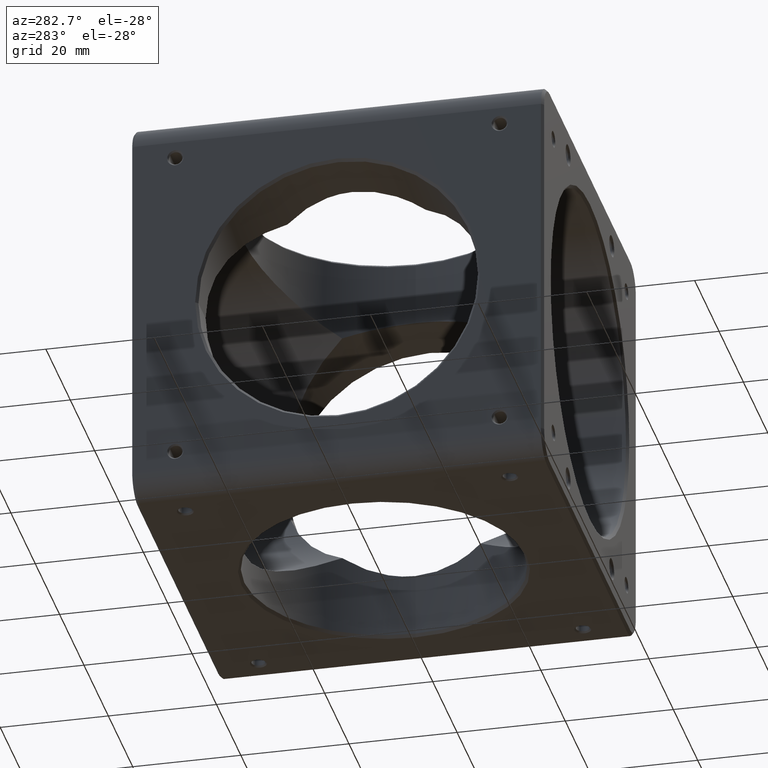
[diagram: clean part render]
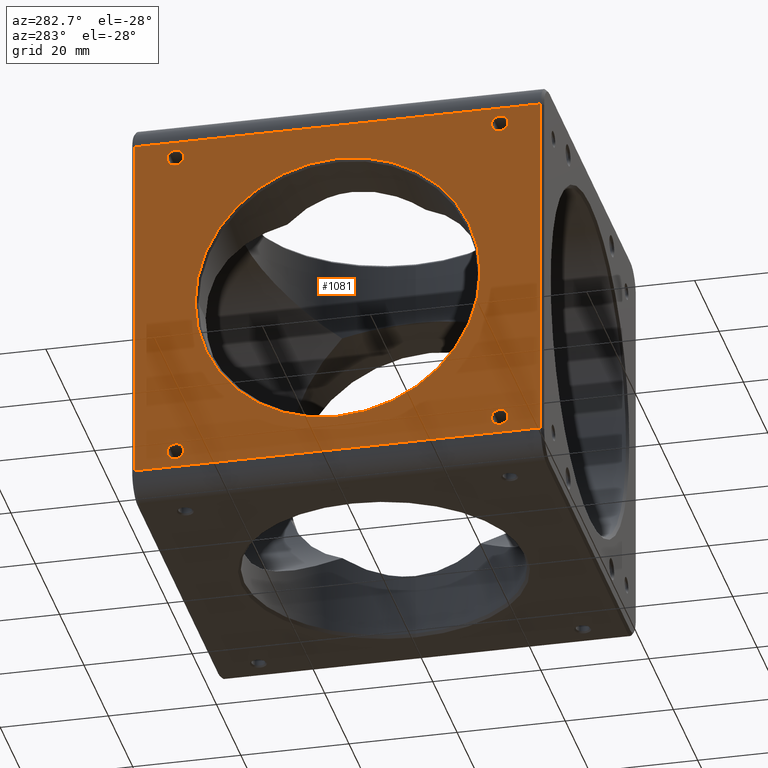
[diagram: same view with one face highlighted and labeled with its STEP entity id]
A machine part, auxiliary view. The second image highlights one B-rep face of the part: STEP entity #1081.
In plain terms, the highlighted planar face has unit normal (1, 0, -0).
Its self-contained STEP definition (entity closure, byte-faithful):
#5 = PLANE ( 'NONE',  #399 ) ;
#163 = ORIENTED_EDGE ( 'NONE', *, *, #4471, .T. ) ;
#286 = CARTESIAN_POINT ( 'NONE',  ( -38.09999999999999432, -30.00000000000000355, 31.52499999999999858 ) ) ;
#295 = ORIENTED_EDGE ( 'NONE', *, *, #4304, .F. ) ;
#296 = AXIS2_PLACEMENT_3D ( 'NONE', #326, #340, #6053 ) ;
#308 = ORIENTED_EDGE ( 'NONE', *, *, #447, .T. ) ;
#326 = CARTESIAN_POINT ( 'NONE',  ( -38.09999999999999432, -30.00000000000000355, 29.99999999999999645 ) ) ;
#340 = DIRECTION ( 'NONE',  ( -1.000000000000000000, -0.0000000000000000000, -0.0000000000000000000 ) ) ;
#399 = AXIS2_PLACEMENT_3D ( 'NONE', #886, #6068, #5681 ) ;
#414 = VERTEX_POINT ( 'NONE', #4195 ) ;
#447 = EDGE_CURVE ( 'NONE', #4114, #1068, #970, .T. ) ;
#509 = DIRECTION ( 'NONE',  ( 0.0000000000000000000, 0.0000000000000000000, -1.000000000000000000 ) ) ;
#590 = DIRECTION ( 'NONE',  ( 0.0000000000000000000, 0.0000000000000000000, 1.000000000000000000 ) ) ;
#594 = EDGE_LOOP ( 'NONE', ( #163, #308, #4085, #5326 ) ) ;
#691 = CIRCLE ( 'NONE', #1712, 1.525000000000002132 ) ;
#858 = DIRECTION ( 'NONE',  ( -1.000000000000000000, -0.0000000000000000000, -0.0000000000000000000 ) ) ;
#882 = EDGE_CURVE ( 'NONE', #3542, #3994, #2418, .T. ) ;
#886 = CARTESIAN_POINT ( 'NONE',  ( -38.10000000000000853, 38.09999999999999432, 38.10000000000000142 ) ) ;
#924 = VECTOR ( 'NONE', #509, 1000.000000000000000 ) ;
#942 = CARTESIAN_POINT ( 'NONE',  ( -38.10000000000000142, -1.354819034737886341E-14, 0.0000000000000000000 ) ) ;
#970 = LINE ( 'NONE', #971, #5771 ) ;
#971 = CARTESIAN_POINT ( 'NONE',  ( -38.09999999999999432, -37.60000000000002274, 38.10000000000000142 ) ) ;
#984 = CIRCLE ( 'NONE', #4404, 1.525000000000005462 ) ;
#1029 = VERTEX_POINT ( 'NONE', #2689 ) ;
#1068 = VERTEX_POINT ( 'NONE', #2262 ) ;
#1081 = ADVANCED_FACE ( 'NONE', ( #2493, #5112, #2196, #5563, #6022, #3064 ), #5, .F. ) ;
#1152 = DIRECTION ( 'NONE',  ( -1.000000000000000000, -0.0000000000000000000, -0.0000000000000000000 ) ) ;
#1164 = VERTEX_POINT ( 'NONE', #2320 ) ;
#1232 = VERTEX_POINT ( 'NONE', #5263 ) ;
#1272 = DIRECTION ( 'NONE',  ( -1.000000000000000000, -0.0000000000000000000, -0.0000000000000000000 ) ) ;
#1426 = DIRECTION ( 'NONE',  ( -1.821231995776175479E-16, 1.000000000000000000, -0.0000000000000000000 ) ) ;
#1428 = EDGE_CURVE ( 'NONE', #5654, #414, #4289, .T. ) ;
#1457 = DIRECTION ( 'NONE',  ( 0.0000000000000000000, 0.0000000000000000000, 1.000000000000000000 ) ) ;
#1484 = EDGE_CURVE ( 'NONE', #3769, #2187, #984, .T. ) ;
#1512 = DIRECTION ( 'NONE',  ( 0.0000000000000000000, 0.0000000000000000000, 1.000000000000000000 ) ) ;
#1514 = ORIENTED_EDGE ( 'NONE', *, *, #1428, .F. ) ;
#1564 = CARTESIAN_POINT ( 'NONE',  ( -38.10000000000000853, 26.34499999999995268, 3.226331992353697999E-15 ) ) ;
#1712 = AXIS2_PLACEMENT_3D ( 'NONE', #2451, #3397, #1512 ) ;
#1740 = VERTEX_POINT ( 'NONE', #1564 ) ;
#1841 = CARTESIAN_POINT ( 'NONE',  ( -38.10000000000000853, 37.60000000000002274, 38.10000000000000142 ) ) ;
#1915 = ORIENTED_EDGE ( 'NONE', *, *, #882, .F. ) ;
#2187 = VERTEX_POINT ( 'NONE', #5473 ) ;
#2196 = FACE_BOUND ( 'NONE', #4313, .T. ) ;
#2262 = CARTESIAN_POINT ( 'NONE',  ( -38.09999999999999432, -37.60000000000002274, 33.10000000000000142 ) ) ;
#2279 = LINE ( 'NONE', #5674, #3969 ) ;
#2320 = CARTESIAN_POINT ( 'NONE',  ( -38.10000000000000853, 29.99999999999998224, -31.52500000000001279 ) ) ;
#2418 = CIRCLE ( 'NONE', #2574, 1.524999999999998579 ) ;
#2451 = CARTESIAN_POINT ( 'NONE',  ( -38.10000000000000853, 29.99999999999998224, -30.00000000000001066 ) ) ;
#2469 = EDGE_CURVE ( 'NONE', #1068, #1029, #2279, .T. ) ;
#2493 = FACE_BOUND ( 'NONE', #5052, .T. ) ;
#2502 = DIRECTION ( 'NONE',  ( -2.633856103210186898E-16, 1.000000000000000000, 0.0000000000000000000 ) ) ;
#2536 = CARTESIAN_POINT ( 'NONE',  ( -38.09999999999999432, -30.00000000000000355, -31.52499999999999858 ) ) ;
#2561 = CARTESIAN_POINT ( 'NONE',  ( -38.10000000000000142, -1.354819034737886341E-14, 0.0000000000000000000 ) ) ;
#2574 = AXIS2_PLACEMENT_3D ( 'NONE', #5317, #4333, #590 ) ;
#2588 = CARTESIAN_POINT ( 'NONE',  ( -38.09999999999999432, -30.00000000000000355, -28.47500000000000497 ) ) ;
#2615 = DIRECTION ( 'NONE',  ( -1.000000000000000000, -0.0000000000000000000, -0.0000000000000000000 ) ) ;
#2640 = EDGE_CURVE ( 'NONE', #2187, #3769, #5123, .T. ) ;
#2658 = LINE ( 'NONE', #5009, #5354 ) ;
#2689 = CARTESIAN_POINT ( 'NONE',  ( -38.10000000000000853, 37.60000000000000853, 33.10000000000000142 ) ) ;
#2730 = ORIENTED_EDGE ( 'NONE', *, *, #6130, .F. ) ;
#2981 = CARTESIAN_POINT ( 'NONE',  ( -38.10000000000000853, 29.99999999999999645, 29.99999999999999289 ) ) ;
#3060 = ORIENTED_EDGE ( 'NONE', *, *, #2640, .F. ) ;
#3064 = FACE_BOUND ( 'NONE', #3318, .T. ) ;
#3087 = EDGE_CURVE ( 'NONE', #1029, #1232, #4672, .T. ) ;
#3125 = ORIENTED_EDGE ( 'NONE', *, *, #3325, .F. ) ;
#3149 = AXIS2_PLACEMENT_3D ( 'NONE', #5958, #1272, #4540 ) ;
#3180 = CIRCLE ( 'NONE', #5812, 1.525000000000002132 ) ;
#3239 = VERTEX_POINT ( 'NONE', #5344 ) ;
#3318 = EDGE_LOOP ( 'NONE', ( #295, #1915 ) ) ;
#3325 = EDGE_CURVE ( 'NONE', #3239, #1164, #3180, .T. ) ;
#3397 = DIRECTION ( 'NONE',  ( -1.000000000000000000, -0.0000000000000000000, -0.0000000000000000000 ) ) ;
#3454 = EDGE_CURVE ( 'NONE', #1740, #5160, #4876, .T. ) ;
#3542 = VERTEX_POINT ( 'NONE', #2536 ) ;
#3553 = DIRECTION ( 'NONE',  ( 0.0000000000000000000, 0.0000000000000000000, 1.000000000000000000 ) ) ;
#3611 = ORIENTED_EDGE ( 'NONE', *, *, #3931, .T. ) ;
#3623 = CIRCLE ( 'NONE', #5031, 1.524999999999998579 ) ;
#3769 = VERTEX_POINT ( 'NONE', #5697 ) ;
#3931 = EDGE_CURVE ( 'NONE', #5160, #1740, #4950, .T. ) ;
#3969 = VECTOR ( 'NONE', #1426, 1000.000000000000000 ) ;
#3994 = VERTEX_POINT ( 'NONE', #2588 ) ;
#4085 = ORIENTED_EDGE ( 'NONE', *, *, #2469, .T. ) ;
#4114 = VERTEX_POINT ( 'NONE', #5087 ) ;
#4195 = CARTESIAN_POINT ( 'NONE',  ( -38.09999999999999432, -30.00000000000000355, 28.47499999999999787 ) ) ;
#4289 = CIRCLE ( 'NONE', #3149, 1.525000000000002132 ) ;
#4293 = DIRECTION ( 'NONE',  ( -2.633856103210186898E-16, 1.000000000000000000, 0.0000000000000000000 ) ) ;
#4304 = EDGE_CURVE ( 'NONE', #3994, #3542, #3623, .T. ) ;
#4313 = EDGE_LOOP ( 'NONE', ( #3125, #2730 ) ) ;
#4333 = DIRECTION ( 'NONE',  ( -1.000000000000000000, -0.0000000000000000000, -0.0000000000000000000 ) ) ;
#4404 = AXIS2_PLACEMENT_3D ( 'NONE', #5039, #2615, #3553 ) ;
#4471 = EDGE_CURVE ( 'NONE', #1232, #4114, #2658, .T. ) ;
#4509 = AXIS2_PLACEMENT_3D ( 'NONE', #2561, #5842, #2502 ) ;
#4518 = CARTESIAN_POINT ( 'NONE',  ( -38.10000000000000853, 29.99999999999998224, -30.00000000000001066 ) ) ;
#4540 = DIRECTION ( 'NONE',  ( 0.0000000000000000000, 0.0000000000000000000, 1.000000000000000000 ) ) ;
#4672 = LINE ( 'NONE', #1841, #924 ) ;
#4676 = DIRECTION ( 'NONE',  ( 0.0000000000000000000, 0.0000000000000000000, 1.000000000000000000 ) ) ;
#4736 = ORIENTED_EDGE ( 'NONE', *, *, #4986, .F. ) ;
#4744 = DIRECTION ( 'NONE',  ( -1.000000000000000000, -0.0000000000000000000, -0.0000000000000000000 ) ) ;
#4876 = CIRCLE ( 'NONE', #5607, 26.34499999999996689 ) ;
#4939 = EDGE_LOOP ( 'NONE', ( #1514, #4736 ) ) ;
#4950 = CIRCLE ( 'NONE', #4509, 26.34499999999996689 ) ;
#4986 = EDGE_CURVE ( 'NONE', #414, #5654, #5798, .T. ) ;
#5009 = CARTESIAN_POINT ( 'NONE',  ( -38.10000000000000853, 38.09999999999999432, -33.10000000000000853 ) ) ;
#5031 = AXIS2_PLACEMENT_3D ( 'NONE', #5731, #4744, #1457 ) ;
#5039 = CARTESIAN_POINT ( 'NONE',  ( -38.10000000000000853, 29.99999999999999645, 29.99999999999999289 ) ) ;
#5052 = EDGE_LOOP ( 'NONE', ( #3611, #5271 ) ) ;
#5087 = CARTESIAN_POINT ( 'NONE',  ( -38.09999999999999432, -37.60000000000002274, -33.10000000000000853 ) ) ;
#5112 = FACE_BOUND ( 'NONE', #4939, .T. ) ;
#5123 = CIRCLE ( 'NONE', #5276, 1.525000000000005462 ) ;
#5145 = ORIENTED_EDGE ( 'NONE', *, *, #1484, .F. ) ;
#5160 = VERTEX_POINT ( 'NONE', #5754 ) ;
#5214 = DIRECTION ( 'NONE',  ( 0.0000000000000000000, 0.0000000000000000000, 1.000000000000000000 ) ) ;
#5263 = CARTESIAN_POINT ( 'NONE',  ( -38.10000000000000853, 37.60000000000000853, -33.10000000000000853 ) ) ;
#5271 = ORIENTED_EDGE ( 'NONE', *, *, #3454, .T. ) ;
#5276 = AXIS2_PLACEMENT_3D ( 'NONE', #2981, #1152, #5843 ) ;
#5317 = CARTESIAN_POINT ( 'NONE',  ( -38.09999999999999432, -30.00000000000000355, -30.00000000000000355 ) ) ;
#5326 = ORIENTED_EDGE ( 'NONE', *, *, #3087, .T. ) ;
#5344 = CARTESIAN_POINT ( 'NONE',  ( -38.10000000000000853, 29.99999999999998224, -28.47500000000000853 ) ) ;
#5354 = VECTOR ( 'NONE', #5462, 1000.000000000000000 ) ;
#5462 = DIRECTION ( 'NONE',  ( 1.821231995776175479E-16, -1.000000000000000000, 0.0000000000000000000 ) ) ;
#5473 = CARTESIAN_POINT ( 'NONE',  ( -38.10000000000000853, 29.99999999999999645, 31.52499999999999858 ) ) ;
#5563 = FACE_BOUND ( 'NONE', #5617, .T. ) ;
#5607 = AXIS2_PLACEMENT_3D ( 'NONE', #942, #5620, #4293 ) ;
#5617 = EDGE_LOOP ( 'NONE', ( #3060, #5145 ) ) ;
#5620 = DIRECTION ( 'NONE',  ( 1.000000000000000000, 1.821231995776175479E-16, -0.0000000000000000000 ) ) ;
#5654 = VERTEX_POINT ( 'NONE', #286 ) ;
#5674 = CARTESIAN_POINT ( 'NONE',  ( -38.10000000000000853, 38.09999999999999432, 33.10000000000000142 ) ) ;
#5681 = DIRECTION ( 'NONE',  ( -1.821231995776175479E-16, 1.000000000000000000, 0.0000000000000000000 ) ) ;
#5697 = CARTESIAN_POINT ( 'NONE',  ( -38.10000000000000853, 29.99999999999999645, 28.47499999999999076 ) ) ;
#5731 = CARTESIAN_POINT ( 'NONE',  ( -38.09999999999999432, -30.00000000000000355, -30.00000000000000355 ) ) ;
#5754 = CARTESIAN_POINT ( 'NONE',  ( -38.09999999999999432, -26.34499999999997399, 0.0000000000000000000 ) ) ;
#5771 = VECTOR ( 'NONE', #5214, 1000.000000000000000 ) ;
#5798 = CIRCLE ( 'NONE', #296, 1.525000000000002132 ) ;
#5812 = AXIS2_PLACEMENT_3D ( 'NONE', #4518, #858, #4676 ) ;
#5842 = DIRECTION ( 'NONE',  ( 1.000000000000000000, 1.821231995776175479E-16, -0.0000000000000000000 ) ) ;
#5843 = DIRECTION ( 'NONE',  ( 0.0000000000000000000, 0.0000000000000000000, 1.000000000000000000 ) ) ;
#5958 = CARTESIAN_POINT ( 'NONE',  ( -38.09999999999999432, -30.00000000000000355, 29.99999999999999645 ) ) ;
#6022 = FACE_OUTER_BOUND ( 'NONE', #594, .T. ) ;
#6053 = DIRECTION ( 'NONE',  ( 0.0000000000000000000, 0.0000000000000000000, 1.000000000000000000 ) ) ;
#6068 = DIRECTION ( 'NONE',  ( 1.000000000000000000, 1.821231995776175479E-16, -0.0000000000000000000 ) ) ;
#6130 = EDGE_CURVE ( 'NONE', #1164, #3239, #691, .T. ) ;